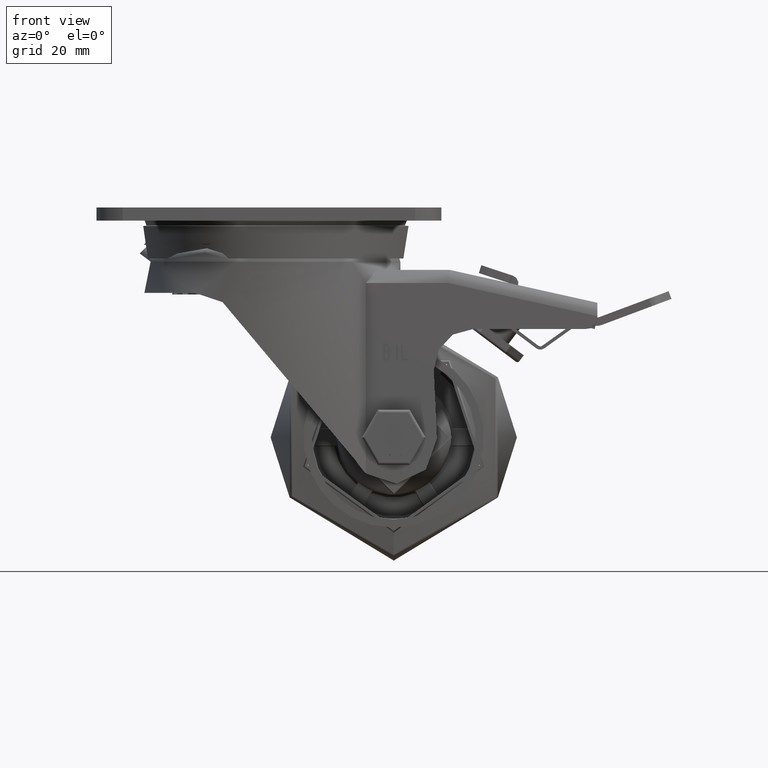
[diagram: clean part render]
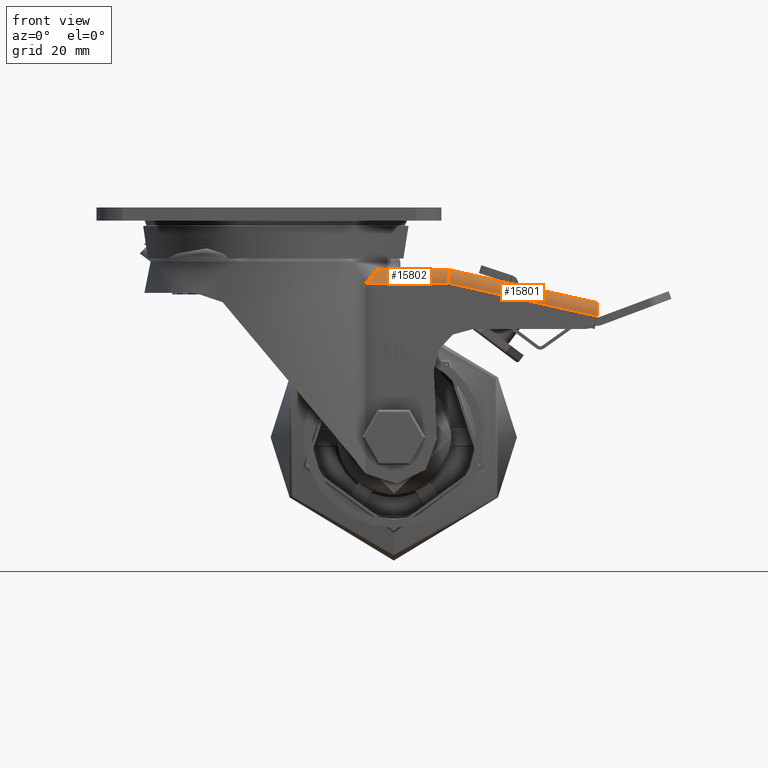
[diagram: same view with one multi-face feature highlighted, each face labeled with its STEP entity id]
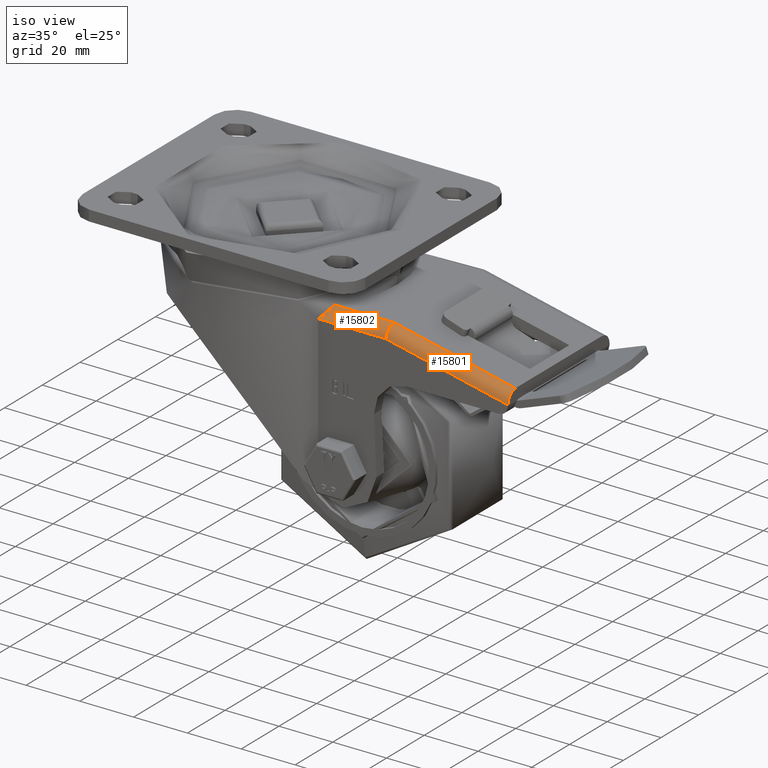
[diagram: same view with one multi-face feature highlighted, each face labeled with its STEP entity id]
A machine part, front view. The highlighted faces form ONE feature: a constant-radius fillet chain: 2 tangent blend faces with common blend radius 4 mm. The faces share edges in the B-rep.
A second angle (iso view) of the same feature is appended — it is thin or edge-on in the first view.
Their STEP definitions:
[1] entity #15802 (Cylinder):
#483=B_SPLINE_CURVE_WITH_KNOTS('',3,(#24614,#24615,#24616,#24617,#24618,
#24619,#24620,#24621,#24622,#24623,#24624,#24625),.UNSPECIFIED.,.F.,.F.,
(4,2,2,2,2,4),(0.,0.0810803191633481,0.162160638326696,0.324321276653392,
0.506687006283466,0.689052735913539),.UNSPECIFIED.);
#1432=ELLIPSE('',#17216,4.02402771796022,4.);
#1732=FACE_OUTER_BOUND('',#2712,.T.);
#2712=EDGE_LOOP('',(#11537,#11538,#11539,#11540));
#3874=LINE('',#24646,#4966);
#3875=LINE('',#24647,#4967);
#4966=VECTOR('',#19775,1000.);
#4967=VECTOR('',#19776,1000.);
#6951=VERTEX_POINT('',#24521);
#6964=VERTEX_POINT('',#24612);
#6968=VERTEX_POINT('',#24637);
#6969=VERTEX_POINT('',#24638);
#8630=EDGE_CURVE('',#6951,#6964,#483,.F.);
#8636=EDGE_CURVE('',#6968,#6969,#1432,.T.);
#8640=EDGE_CURVE('',#6964,#6968,#3874,.T.);
#8641=EDGE_CURVE('',#6969,#6951,#3875,.T.);
#11537=ORIENTED_EDGE('',*,*,#8630,.T.);
#11538=ORIENTED_EDGE('',*,*,#8640,.T.);
#11539=ORIENTED_EDGE('',*,*,#8636,.T.);
#11540=ORIENTED_EDGE('',*,*,#8641,.T.);
#15391=CYLINDRICAL_SURFACE('',#17218,4.);
#15802=ADVANCED_FACE('',(#1732),#15391,.T.);
#17216=AXIS2_PLACEMENT_3D('',#24639,#19767,#19768);
#17218=AXIS2_PLACEMENT_3D('',#24645,#19773,#19774);
#19767=DIRECTION('center_axis',(-0.994028938256818,1.7243653349944E-15,
0.109116771891507));
#19768=DIRECTION('ref_axis',(-0.109116771891507,-1.57085754407732E-14,-0.994028938256818));
#19773=DIRECTION('center_axis',(1.,0.,-1.38777878078145E-15));
#19774=DIRECTION('ref_axis',(9.81307786677362E-16,-0.707106781186548,0.707106781186548));
#19775=DIRECTION('',(1.,0.,-1.38777878078145E-15));
#19776=DIRECTION('',(-1.,0.,1.38777878078145E-15));
#24521=CARTESIAN_POINT('',(32.7261363439071,-23.,-19.));
#24612=CARTESIAN_POINT('',(29.5127091267474,-27.,-23.));
#24614=CARTESIAN_POINT('Ctrl Pts',(29.5127091267474,-27.,-23.));
#24615=CARTESIAN_POINT('Ctrl Pts',(29.5127091267474,-27.,-22.7297322694555));
#24616=CARTESIAN_POINT('Ctrl Pts',(29.538226788649,-26.9721848018912,-22.4557938567175));
#24617=CARTESIAN_POINT('Ctrl Pts',(29.6388936874271,-26.8615259392418,-21.921561381094));
#24618=CARTESIAN_POINT('Ctrl Pts',(29.7139638678689,-26.778730577431,-21.6612424204511));
#24619=CARTESIAN_POINT('Ctrl Pts',(29.9972998202262,-26.4620906844482,-20.926780767368));
#24620=CARTESIAN_POINT('Ctrl Pts',(30.2658818532404,-26.1564707408382,-20.4996164913459));
#24621=CARTESIAN_POINT('Ctrl Pts',(30.8552556241967,-25.459509525405,-19.8026552759126));
#24622=CARTESIAN_POINT('Ctrl Pts',(31.2265327393435,-25.005777349518,-19.4989000458045));
#24623=CARTESIAN_POINT('Ctrl Pts',(31.9873455369021,-24.0248823775956,-19.097377807974));
#24624=CARTESIAN_POINT('Ctrl Pts',(32.3766020287828,-23.4973438110275,-19.));
#24625=CARTESIAN_POINT('Ctrl Pts',(32.7261363439072,-23.,-19.));
#24637=CARTESIAN_POINT('',(54.5609110854142,-27.,-23.));
#24638=CARTESIAN_POINT('',(55.,-23.,-19.));
#24639=CARTESIAN_POINT('Origin',(54.5609110854142,-23.,-23.));
#24645=CARTESIAN_POINT('Origin',(23.75,-23.,-23.));
#24646=CARTESIAN_POINT('',(23.75,-27.,-23.));
#24647=CARTESIAN_POINT('',(23.75,-23.,-19.));
[2] entity #15801 (Cylinder):
#1432=ELLIPSE('',#17216,4.02402771796022,4.);
#1433=ELLIPSE('',#17217,4.09757531435239,4.);
#1731=FACE_OUTER_BOUND('',#2711,.T.);
#2711=EDGE_LOOP('',(#11533,#11534,#11535,#11536));
#3872=LINE('',#24641,#4964);
#3873=LINE('',#24644,#4965);
#4964=VECTOR('',#19769,1000.);
#4965=VECTOR('',#19772,1000.);
#6968=VERTEX_POINT('',#24637);
#6969=VERTEX_POINT('',#24638);
#6970=VERTEX_POINT('',#24640);
#6971=VERTEX_POINT('',#24642);
#8636=EDGE_CURVE('',#6968,#6969,#1432,.T.);
#8637=EDGE_CURVE('',#6968,#6970,#3872,.T.);
#8638=EDGE_CURVE('',#6970,#6971,#1433,.T.);
#8639=EDGE_CURVE('',#6971,#6969,#3873,.T.);
#11533=ORIENTED_EDGE('',*,*,#8636,.F.);
#11534=ORIENTED_EDGE('',*,*,#8637,.T.);
#11535=ORIENTED_EDGE('',*,*,#8638,.T.);
#11536=ORIENTED_EDGE('',*,*,#8639,.T.);
#15390=CYLINDRICAL_SURFACE('',#17215,4.);
#15801=ADVANCED_FACE('',(#1731),#15390,.T.);
#17215=AXIS2_PLACEMENT_3D('',#24636,#19765,#19766);
#17216=AXIS2_PLACEMENT_3D('',#24639,#19767,#19768);
#17217=AXIS2_PLACEMENT_3D('',#24643,#19770,#19771);
#19765=DIRECTION('center_axis',(0.976187060183953,1.32348898008484E-17,
-0.216930457818656));
#19766=DIRECTION('ref_axis',(0.153392997769474,-0.707106781186548,0.690268489962633));
#19767=DIRECTION('center_axis',(-0.994028938256818,1.7243653349944E-15,
0.109116771891507));
#19768=DIRECTION('ref_axis',(-0.109116771891507,-1.57085754407732E-14,-0.994028938256818));
#19769=DIRECTION('',(0.976187060183953,0.,-0.216930457818656));
#19770=DIRECTION('center_axis',(-1.,2.03837369133462E-47,2.56996070515082E-16));
#19771=DIRECTION('ref_axis',(2.56996070515082E-16,-4.23353652561472E-16,
1.));
#19772=DIRECTION('',(-0.976187060183953,0.,0.216930457818656));
#24636=CARTESIAN_POINT('Origin',(37.1646311099018,-23.,-19.1341600054417));
#24637=CARTESIAN_POINT('',(54.5609110854142,-27.,-23.));
#24638=CARTESIAN_POINT('',(55.,-23.,-19.));
#24639=CARTESIAN_POINT('Origin',(54.5609110854142,-23.,-23.));
#24640=CARTESIAN_POINT('',(100.,-27.,-33.0975753143524));
#24641=CARTESIAN_POINT('',(37.1646311099018,-27.,-19.1341600054417));
#24642=CARTESIAN_POINT('',(100.,-23.,-29.));
#24643=CARTESIAN_POINT('Origin',(100.,-23.,-33.0975753143524));
#24644=CARTESIAN_POINT('',(38.0323529411765,-23.,-15.2294117647059));